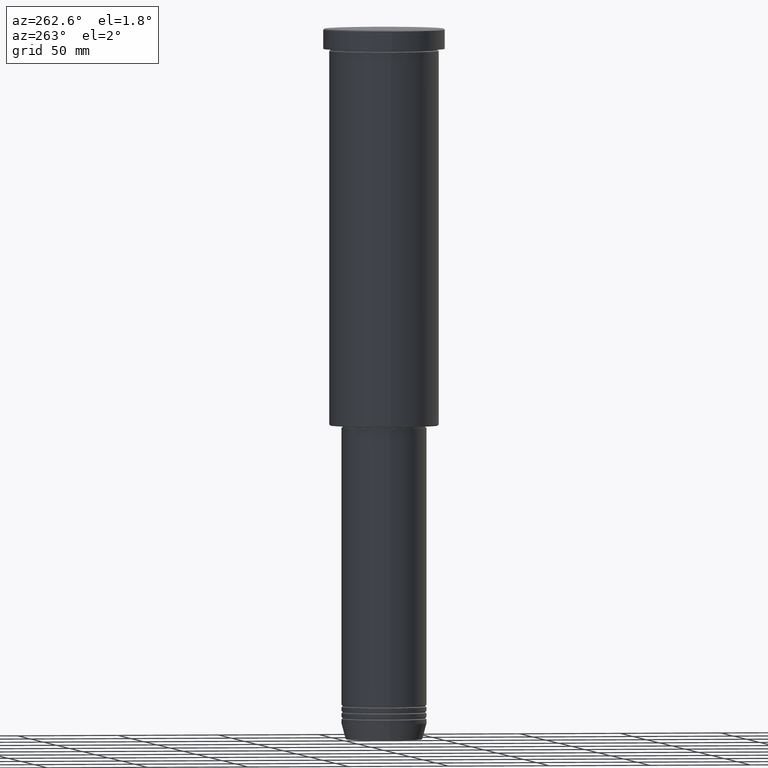
[diagram: clean part render]
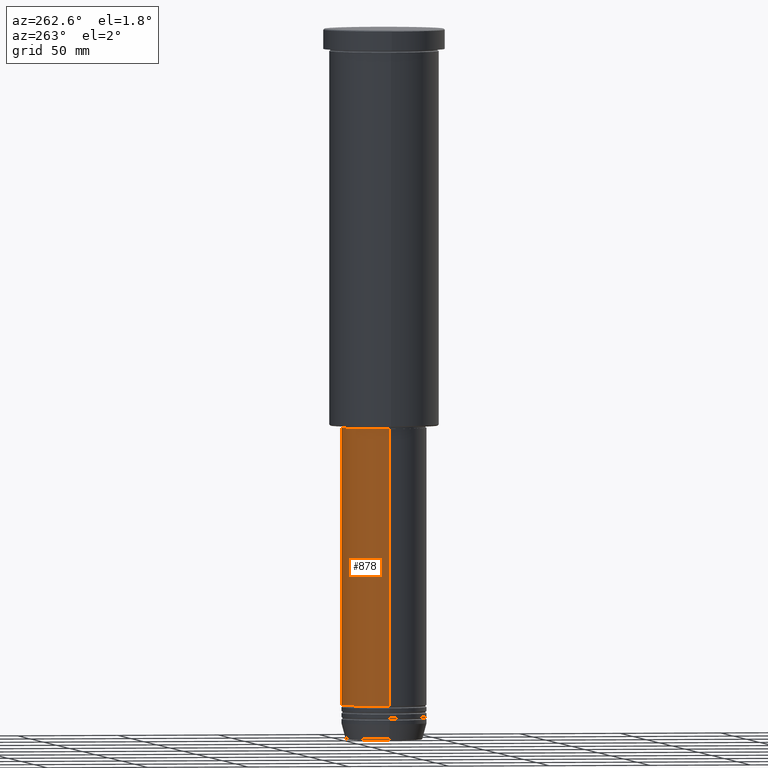
[diagram: same view with one face highlighted and labeled with its STEP entity id]
A machine part, auxiliary view. The second image highlights one B-rep face of the part: STEP entity #878.
In plain terms, the highlighted cylindrical surface (partial cylindrical patch) has radius 21 mm, axis along (-0, -0, 1).
Its self-contained STEP definition (entity closure, byte-faithful):
#9 = DIRECTION ( 'NONE',  ( -0.000000000000000000, -0.000000000000000000, 1.000000000000000000 ) ) ;
#30 = CIRCLE ( 'NONE', #715, 21.00000000000000000 ) ;
#58 = AXIS2_PLACEMENT_3D ( 'NONE', #189, #267, #1162 ) ;
#98 = CIRCLE ( 'NONE', #285, 21.00000000000000000 ) ;
#105 = CARTESIAN_POINT ( 'NONE',  ( 0.000000000000000000, 0.000000000000000000, -196.9999999999999432 ) ) ;
#112 = DIRECTION ( 'NONE',  ( -0.000000000000000000, -0.000000000000000000, 1.000000000000000000 ) ) ;
#184 = CARTESIAN_POINT ( 'NONE',  ( 21.00000000000000000, 0.000000000000000000, -334.0000000000000000 ) ) ;
#189 = CARTESIAN_POINT ( 'NONE',  ( 0.000000000000000000, 0.000000000000000000, 0.000000000000000000 ) ) ;
#203 = ORIENTED_EDGE ( 'NONE', *, *, #1150, .F. ) ;
#267 = DIRECTION ( 'NONE',  ( -0.000000000000000000, -0.000000000000000000, 1.000000000000000000 ) ) ;
#271 = ORIENTED_EDGE ( 'NONE', *, *, #673, .F. ) ;
#279 = VERTEX_POINT ( 'NONE', #495 ) ;
#285 = AXIS2_PLACEMENT_3D ( 'NONE', #105, #757, #373 ) ;
#373 = DIRECTION ( 'NONE',  ( 1.000000000000000000, 0.000000000000000000, 0.000000000000000000 ) ) ;
#378 = CARTESIAN_POINT ( 'NONE',  ( -21.00000000000000000, 2.571758278209441661E-15, 0.000000000000000000 ) ) ;
#459 = CYLINDRICAL_SURFACE ( 'NONE', #58, 21.00000000000000000 ) ;
#477 = LINE ( 'NONE', #827, #799 ) ;
#495 = CARTESIAN_POINT ( 'NONE',  ( 21.00000000000000000, 0.000000000000000000, -196.9999999999999432 ) ) ;
#548 = VERTEX_POINT ( 'NONE', #184 ) ;
#572 = DIRECTION ( 'NONE',  ( 1.000000000000000000, 0.000000000000000000, 0.000000000000000000 ) ) ;
#650 = EDGE_CURVE ( 'NONE', #548, #1134, #30, .T. ) ;
#659 = CARTESIAN_POINT ( 'NONE',  ( -21.00000000000000000, 2.571758278209441661E-15, -334.0000000000000000 ) ) ;
#673 = EDGE_CURVE ( 'NONE', #548, #279, #477, .T. ) ;
#715 = AXIS2_PLACEMENT_3D ( 'NONE', #747, #1035, #572 ) ;
#747 = CARTESIAN_POINT ( 'NONE',  ( 0.000000000000000000, 0.000000000000000000, -334.0000000000000000 ) ) ;
#757 = DIRECTION ( 'NONE',  ( -0.000000000000000000, -0.000000000000000000, 1.000000000000000000 ) ) ;
#799 = VECTOR ( 'NONE', #9, 1000.000000000000000 ) ;
#802 = ORIENTED_EDGE ( 'NONE', *, *, #650, .T. ) ;
#805 = ORIENTED_EDGE ( 'NONE', *, *, #1058, .T. ) ;
#817 = LINE ( 'NONE', #378, #955 ) ;
#825 = EDGE_LOOP ( 'NONE', ( #802, #805, #203, #271 ) ) ;
#827 = CARTESIAN_POINT ( 'NONE',  ( 21.00000000000000000, 0.000000000000000000, 0.000000000000000000 ) ) ;
#878 = ADVANCED_FACE ( 'NONE', ( #895 ), #459, .T. ) ;
#895 = FACE_OUTER_BOUND ( 'NONE', #825, .T. ) ;
#921 = VERTEX_POINT ( 'NONE', #984 ) ;
#955 = VECTOR ( 'NONE', #112, 1000.000000000000000 ) ;
#984 = CARTESIAN_POINT ( 'NONE',  ( -21.00000000000000000, 2.571758278209441661E-15, -196.9999999999999432 ) ) ;
#1035 = DIRECTION ( 'NONE',  ( -0.000000000000000000, -0.000000000000000000, 1.000000000000000000 ) ) ;
#1058 = EDGE_CURVE ( 'NONE', #1134, #921, #817, .T. ) ;
#1134 = VERTEX_POINT ( 'NONE', #659 ) ;
#1150 = EDGE_CURVE ( 'NONE', #279, #921, #98, .T. ) ;
#1162 = DIRECTION ( 'NONE',  ( 1.000000000000000000, 0.000000000000000000, 0.000000000000000000 ) ) ;